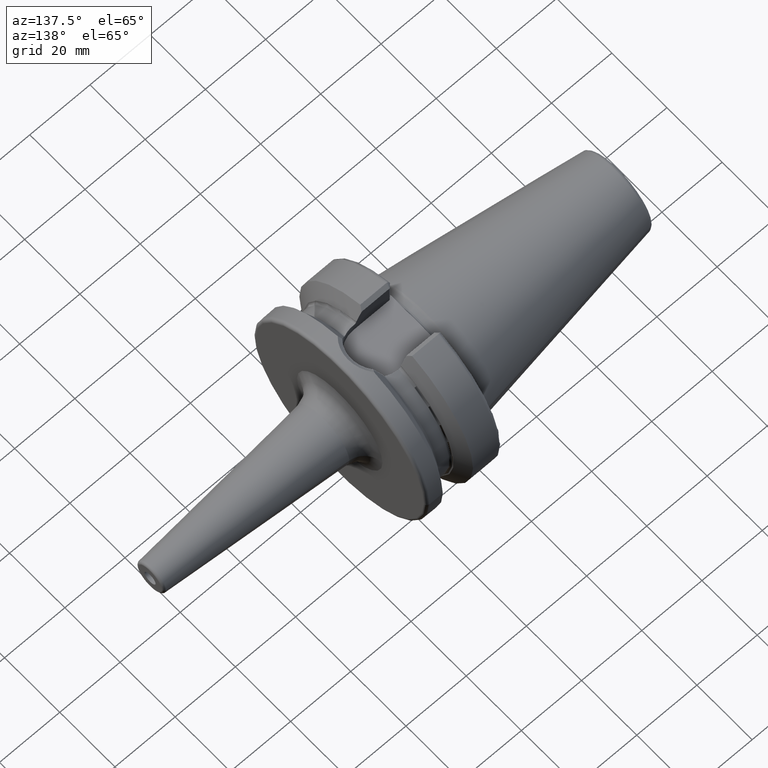
[diagram: clean part render]
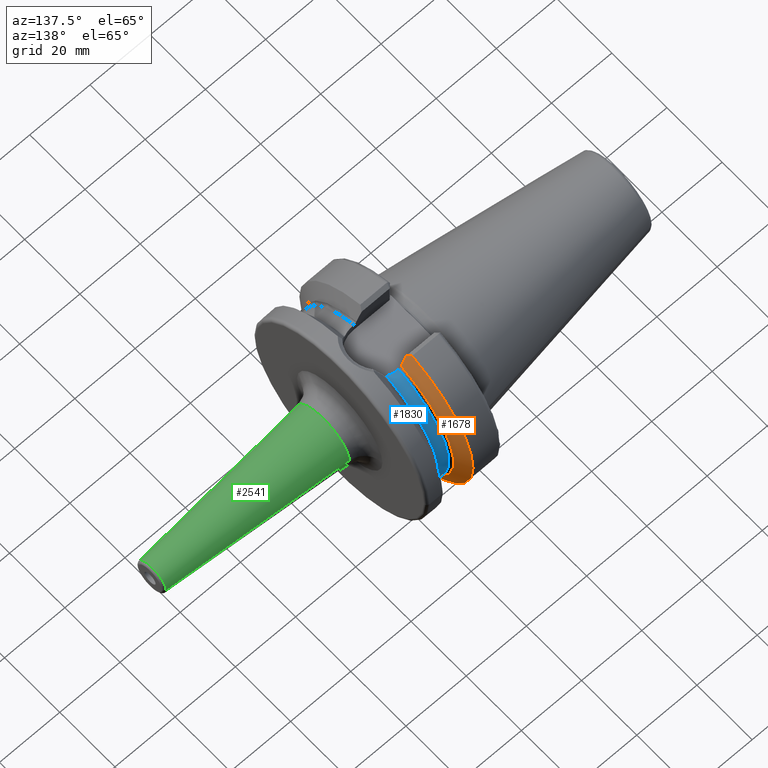
[diagram: same view with three faces highlighted in distinct colors, each labeled with its STEP entity id]
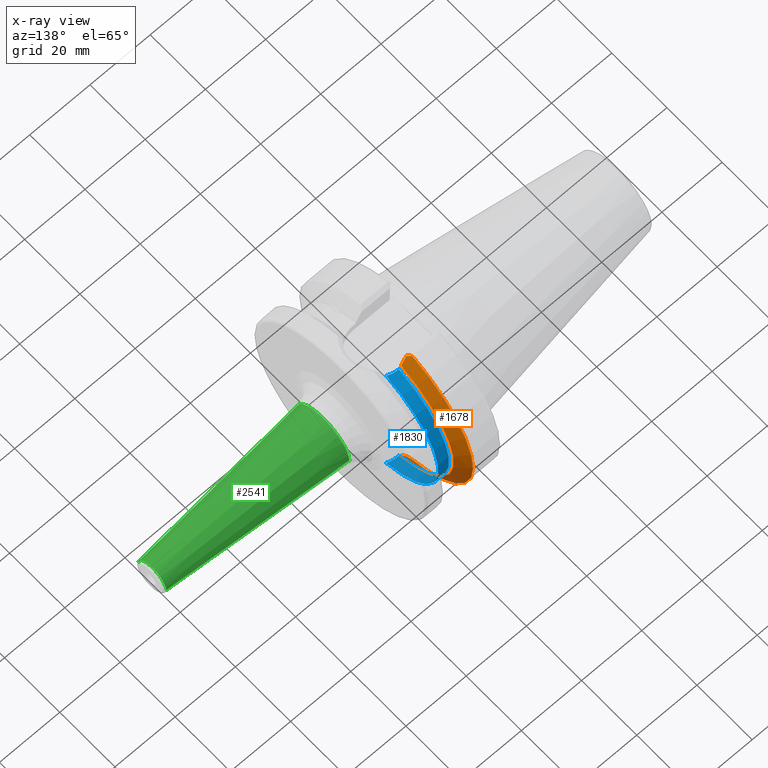
[diagram: x-ray of the same camera — body ghosted, the three highlighted faces saturated]
A machine part, auxiliary view with three faces highlighted in distinct colors.
The next image is the same camera in x-ray (body ghosted, the three faces saturated) — at least one of them is partly hidden behind the body in this view.
Their STEP definitions:

[orange] entity #1678 — the highlighted conical surface has half-angle 60 deg.
#155=CARTESIAN_POINT('',(1.212089730171E1,8.095E0,-2.944558475789E1));
#156=CARTESIAN_POINT('',(1.234623272522E1,8.095E0,-2.904081227564E1));
#157=CARTESIAN_POINT('',(1.279052069613E1,8.095E0,-2.824155997645E1));
#158=CARTESIAN_POINT('',(1.343761208926E1,8.095E0,-2.707376738597E1));
#159=CARTESIAN_POINT('',(1.385633764716E1,8.095E0,-2.631545873157E1));
#160=CARTESIAN_POINT('',(1.40625E1,8.095E0,-2.594139336151E1));
#200=CARTESIAN_POINT('',(1.40625E1,0.E0,0.E0));
#201=DIRECTION('',(1.E0,0.E0,0.E0));
#202=DIRECTION('',(0.E0,2.978832194960E-1,-9.546023190537E-1));
#203=AXIS2_PLACEMENT_3D('',#200,#201,#202);
#237=CARTESIAN_POINT('',(1.157272253103E1,0.E0,0.E0));
#238=DIRECTION('',(1.E0,0.E0,0.E0));
#239=DIRECTION('',(0.E0,2.875039130802E-1,-9.577794631143E-1));
#240=AXIS2_PLACEMENT_3D('',#237,#238,#239);
#622=CARTESIAN_POINT('',(1.212089730171E1,8.095E0,-2.944558475789E1));
#623=CARTESIAN_POINT('',(1.203210735485E1,8.251548423090E0,-2.956204177452E1));
#624=CARTESIAN_POINT('',(1.185196062668E1,8.567728822292E0,-2.979724967558E1));
#625=CARTESIAN_POINT('',(1.166666286204E1,8.890070036919E0,-3.003704063260E1));
#626=CARTESIAN_POINT('',(1.157272253103E1,9.052779463114E0,-3.015808084481E1));
#632=CARTESIAN_POINT('',(1.157272253103E1,9.393318983190E0,3.005375541808E1));
#633=CARTESIAN_POINT('',(1.170089151867E1,9.171323784651E0,2.989055444592E1));
#634=CARTESIAN_POINT('',(1.195252831620E1,8.732937755222E0,2.956827258282E1));
#635=CARTESIAN_POINT('',(1.219479613906E1,8.305773148711E0,2.925424020953E1));
#636=CARTESIAN_POINT('',(1.231359829731E1,8.095E0,2.909928918805E1));
#673=CARTESIAN_POINT('',(1.40625E1,8.095E0,2.594139336151E1));
#674=CARTESIAN_POINT('',(1.387619304722E1,8.095E0,2.627943267022E1));
#675=CARTESIAN_POINT('',(1.349822147379E1,8.095E0,2.696405968402E1));
#676=CARTESIAN_POINT('',(1.291532431893E1,8.095E0,2.801651320770E1));
#677=CARTESIAN_POINT('',(1.251595456147E1,8.095E0,2.873548878206E1));
#678=CARTESIAN_POINT('',(1.231359829731E1,8.095E0,2.909928918805E1));
#1200=CARTESIAN_POINT('',(1.40625E1,8.095E0,-2.594139336151E1));
#1201=CARTESIAN_POINT('',(1.40625E1,8.095E0,2.594139336151E1));
#1202=VERTEX_POINT('',#1200);
#1203=VERTEX_POINT('',#1201);
#1308=VERTEX_POINT('',#678);
#1316=VERTEX_POINT('',#155);
#1326=CARTESIAN_POINT('',(1.157272253103E1,9.052779463114E0,-3.015808084481E1));
#1327=CARTESIAN_POINT('',(1.157272253103E1,9.393318983190E0,3.005375541808E1));
#1328=VERTEX_POINT('',#1326);
#1329=VERTEX_POINT('',#1327);
#1661=CARTESIAN_POINT('',(1.281761126552E1,0.E0,0.E0));
#1662=DIRECTION('',(-1.E0,0.E0,0.E0));
#1663=DIRECTION('',(0.E0,1.E0,0.E0));
#1664=AXIS2_PLACEMENT_3D('',#1661,#1662,#1663);
#1665=CONICAL_SURFACE('',#1664,2.933128946210E1,6.E1);
#1667=ORIENTED_EDGE('',*,*,#1666,.F.);
#1669=ORIENTED_EDGE('',*,*,#1668,.F.);
#1670=ORIENTED_EDGE('',*,*,#1612,.T.);
#1671=ORIENTED_EDGE('',*,*,#1635,.T.);
#1673=ORIENTED_EDGE('',*,*,#1672,.T.);
#1675=ORIENTED_EDGE('',*,*,#1674,.F.);
#1676=EDGE_LOOP('',(#1667,#1669,#1670,#1671,#1673,#1675));
#1677=FACE_OUTER_BOUND('',#1676,.F.);
#1678=ADVANCED_FACE('',(#1677),#1665,.T.);
#161=B_SPLINE_CURVE_WITH_KNOTS('',3,(#155,#156,#157,#158,#159,#160),
.UNSPECIFIED.,.F.,.F.,(4,1,1,4),(0.E0,3.333333333333E-1,6.666666666667E-1,1.E0),
.UNSPECIFIED.);
#204=CIRCLE('',#203,2.717507892421E1);
#241=CIRCLE('',#240,3.14875E1);
#627=B_SPLINE_CURVE_WITH_KNOTS('',3,(#622,#623,#624,#625,#626),.UNSPECIFIED.,
.F.,.F.,(4,1,4),(0.E0,5.E-1,1.E0),.UNSPECIFIED.);
#637=B_SPLINE_CURVE_WITH_KNOTS('',3,(#632,#633,#634,#635,#636),.UNSPECIFIED.,
.F.,.F.,(4,1,4),(0.E0,5.E-1,1.E0),.UNSPECIFIED.);
#679=B_SPLINE_CURVE_WITH_KNOTS('',3,(#673,#674,#675,#676,#677,#678),
.UNSPECIFIED.,.F.,.F.,(4,1,1,4),(0.E0,3.333333333333E-1,6.666666666667E-1,1.E0),
.UNSPECIFIED.);
#1612=EDGE_CURVE('',#1316,#1202,#161,.T.);
#1635=EDGE_CURVE('',#1202,#1203,#204,.T.);
#1666=EDGE_CURVE('',#1328,#1329,#241,.T.);
#1668=EDGE_CURVE('',#1316,#1328,#627,.T.);
#1672=EDGE_CURVE('',#1203,#1308,#679,.T.);
#1674=EDGE_CURVE('',#1329,#1308,#637,.T.);

[blue] entity #1830 — the highlighted cylindrical surface (partial cylindrical patch) has radius 26.375 mm, axis along (1, 0, 0).
#185=DIRECTION('',(1.E0,2.074577330686E-14,0.E0));
#186=VECTOR('',#185,3.425E-1);
#187=CARTESIAN_POINT('',(1.48125E1,8.095E0,-2.510202382279E1));
#188=LINE('',#187,#186);
#348=CARTESIAN_POINT('',(1.48125E1,0.E0,0.E0));
#349=DIRECTION('',(-1.E0,0.E0,0.E0));
#350=DIRECTION('',(0.E0,3.069194312796E-1,9.517355003902E-1));
#351=AXIS2_PLACEMENT_3D('',#348,#349,#350);
#353=CARTESIAN_POINT('',(1.5155E1,8.095E0,-2.510202382279E1));
#354=CARTESIAN_POINT('',(1.552274115811E1,8.095E0,-2.510202382279E1));
#355=CARTESIAN_POINT('',(1.625266243215E1,8.045449937199E0,-2.511808739773E1));
#356=CARTESIAN_POINT('',(1.734035783533E1,7.820815510938E0,-2.518941465745E1));
#357=CARTESIAN_POINT('',(1.804170386658E1,7.572200800424E0,-2.526513476705E1));
#358=CARTESIAN_POINT('',(1.83875E1,7.421588020768E0,-2.530929979770E1));
#360=CARTESIAN_POINT('',(1.83875E1,7.421588020768E0,2.530929979770E1));
#361=CARTESIAN_POINT('',(1.804170386658E1,7.572200800424E0,2.526513476705E1));
#362=CARTESIAN_POINT('',(1.734035783533E1,7.820815510938E0,2.518941465745E1));
#363=CARTESIAN_POINT('',(1.625266243215E1,8.045449937199E0,2.511808739773E1));
#364=CARTESIAN_POINT('',(1.552274115811E1,8.095E0,2.510202382279E1));
#365=CARTESIAN_POINT('',(1.5155E1,8.095E0,2.510202382279E1));
#450=CARTESIAN_POINT('',(1.83875E1,0.E0,0.E0));
#451=DIRECTION('',(-1.E0,0.E0,0.E0));
#452=DIRECTION('',(0.E0,2.813872235362E-1,9.595943051262E-1));
#453=AXIS2_PLACEMENT_3D('',#450,#451,#452);
#657=DIRECTION('',(1.E0,0.E0,0.E0));
#658=VECTOR('',#657,3.425E-1);
#659=CARTESIAN_POINT('',(1.48125E1,8.095E0,2.510202382279E1));
#660=LINE('',#659,#658);
#1172=CARTESIAN_POINT('',(1.48125E1,8.095E0,2.510202382279E1));
#1173=CARTESIAN_POINT('',(1.48125E1,8.095E0,-2.510202382279E1));
#1174=VERTEX_POINT('',#1172);
#1175=VERTEX_POINT('',#1173);
#1184=CARTESIAN_POINT('',(1.83875E1,7.421588020768E0,2.530929979770E1));
#1185=CARTESIAN_POINT('',(1.83875E1,7.421588020768E0,-2.530929979770E1));
#1186=VERTEX_POINT('',#1184);
#1187=VERTEX_POINT('',#1185);
#1306=CARTESIAN_POINT('',(1.5155E1,8.095E0,2.510202382279E1));
#1307=VERTEX_POINT('',#1306);
#1314=CARTESIAN_POINT('',(1.5155E1,8.095E0,-2.510202382279E1));
#1315=VERTEX_POINT('',#1314);
#1813=CARTESIAN_POINT('',(1.106999478413E1,0.E0,0.E0));
#1814=DIRECTION('',(1.E0,0.E0,0.E0));
#1815=DIRECTION('',(0.E0,-1.E0,0.E0));
#1816=AXIS2_PLACEMENT_3D('',#1813,#1814,#1815);
#1817=CYLINDRICAL_SURFACE('',#1816,2.6375E1);
#1818=ORIENTED_EDGE('',*,*,#1792,.T.);
#1819=ORIENTED_EDGE('',*,*,#1623,.T.);
#1821=ORIENTED_EDGE('',*,*,#1820,.T.);
#1823=ORIENTED_EDGE('',*,*,#1822,.F.);
#1825=ORIENTED_EDGE('',*,*,#1824,.T.);
#1827=ORIENTED_EDGE('',*,*,#1826,.F.);
#1828=EDGE_LOOP('',(#1818,#1819,#1821,#1823,#1825,#1827));
#1829=FACE_OUTER_BOUND('',#1828,.F.);
#1830=ADVANCED_FACE('',(#1829),#1817,.T.);
#352=CIRCLE('',#351,2.6375E1);
#359=B_SPLINE_CURVE_WITH_KNOTS('',3,(#353,#354,#355,#356,#357,#358),
.UNSPECIFIED.,.F.,.F.,(4,1,1,4),(0.E0,3.333333333333E-1,6.666666666667E-1,1.E0),
.UNSPECIFIED.);
#366=B_SPLINE_CURVE_WITH_KNOTS('',3,(#360,#361,#362,#363,#364,#365),
.UNSPECIFIED.,.F.,.F.,(4,1,1,4),(0.E0,3.333333333333E-1,6.666666666667E-1,1.E0),
.UNSPECIFIED.);
#454=CIRCLE('',#453,2.6375E1);
#1623=EDGE_CURVE('',#1175,#1315,#188,.T.);
#1792=EDGE_CURVE('',#1174,#1175,#352,.T.);
#1820=EDGE_CURVE('',#1315,#1187,#359,.T.);
#1822=EDGE_CURVE('',#1186,#1187,#454,.T.);
#1824=EDGE_CURVE('',#1186,#1307,#366,.T.);
#1826=EDGE_CURVE('',#1174,#1307,#660,.T.);

[green] entity #2541 — the highlighted conical surface has half-angle 4.5 deg.
#856=CARTESIAN_POINT('',(8.926276727658E1,0.E0,0.E0));
#857=DIRECTION('',(-1.E0,0.E0,0.E0));
#858=DIRECTION('',(0.E0,-1.E0,0.E0));
#859=AXIS2_PLACEMENT_3D('',#856,#857,#858);
#861=CARTESIAN_POINT('',(3.252924542563E1,0.E0,0.E0));
#862=DIRECTION('',(1.E0,0.E0,0.E0));
#863=DIRECTION('',(0.E0,1.E0,0.E0));
#864=AXIS2_PLACEMENT_3D('',#861,#862,#863);
#881=DIRECTION('',(-9.969173337331E-1,7.845909572785E-2,5.220202255729E-13));
#882=VECTOR('',#881,5.690895316115E1);
#883=CARTESIAN_POINT('',(8.926276727658E1,5.058021473660E0,
-2.564207086551E-11));
#884=LINE('',#883,#882);
#890=DIRECTION('',(-9.969173337331E-1,-7.845909572785E-2,-5.220229760257E-13));
#891=VECTOR('',#890,5.690895316115E1);
#892=CARTESIAN_POINT('',(8.926276727658E1,-5.058021473660E0,
2.564191501502E-11));
#893=LINE('',#892,#891);
#1387=CARTESIAN_POINT('',(3.252924542563E1,-9.523046477501E0,0.E0));
#1388=CARTESIAN_POINT('',(3.252924542563E1,9.523046477501E0,0.E0));
#1389=VERTEX_POINT('',#1387);
#1390=VERTEX_POINT('',#1388);
#1391=CARTESIAN_POINT('',(8.926276727658E1,5.058021473660E0,0.E0));
#1392=CARTESIAN_POINT('',(8.926276727658E1,-5.058021473660E0,0.E0));
#1393=VERTEX_POINT('',#1391);
#1394=VERTEX_POINT('',#1392);
#2527=CARTESIAN_POINT('',(6.089600635111E1,0.E0,0.E0));
#2528=DIRECTION('',(-1.E0,0.E0,0.E0));
#2529=DIRECTION('',(0.E0,1.E0,0.E0));
#2530=AXIS2_PLACEMENT_3D('',#2527,#2528,#2529);
#2531=CONICAL_SURFACE('',#2530,7.290533975581E0,4.5E0);
#2533=ORIENTED_EDGE('',*,*,#2532,.F.);
#2535=ORIENTED_EDGE('',*,*,#2534,.T.);
#2536=ORIENTED_EDGE('',*,*,#2521,.F.);
#2538=ORIENTED_EDGE('',*,*,#2537,.F.);
#2539=EDGE_LOOP('',(#2533,#2535,#2536,#2538));
#2540=FACE_OUTER_BOUND('',#2539,.F.);
#2541=ADVANCED_FACE('',(#2540),#2531,.T.);
#860=CIRCLE('',#859,5.058021473660E0);
#865=CIRCLE('',#864,9.523046477501E0);
#2521=EDGE_CURVE('',#1390,#1389,#865,.T.);
#2532=EDGE_CURVE('',#1394,#1393,#860,.T.);
#2534=EDGE_CURVE('',#1394,#1389,#893,.T.);
#2537=EDGE_CURVE('',#1393,#1390,#884,.T.);